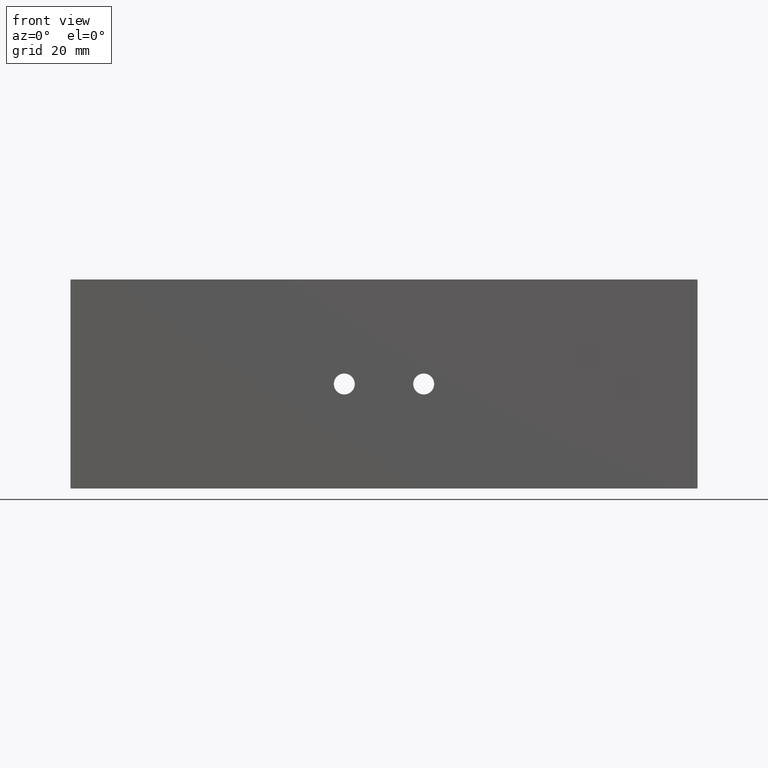
[diagram: clean part render]
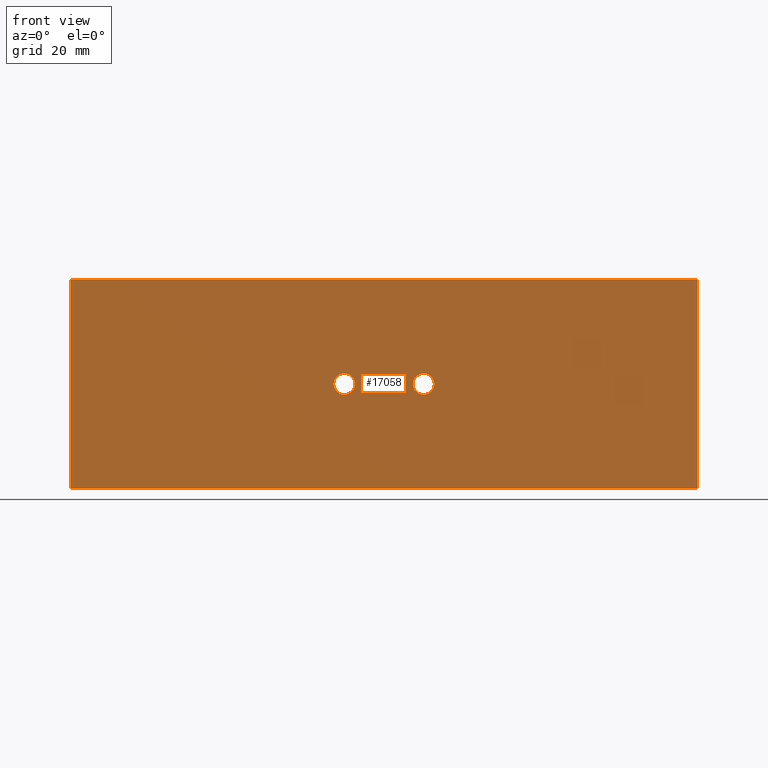
[diagram: same view with one face highlighted and labeled with its STEP entity id]
A machine part, front view. The second image highlights one B-rep face of the part: STEP entity #17058.
In plain terms, the highlighted planar face has unit normal (0, 1, 0).
Its self-contained STEP definition (entity closure, byte-faithful):
#3954 = DIRECTION ( 'NONE',  ( 0.0000000000000000000, -0.0000000000000000000, 1.000000000000000000 ) ) ;
#3988 = CARTESIAN_POINT ( 'NONE',  ( -2.999999999999999100, -0.4400000000000000000, 1.000000000000000000 ) ) ;
#4221 = DIRECTION ( 'NONE',  ( 0.0000000000000000000, 1.000000000000000000, 0.0000000000000000000 ) ) ;
#9739 = ORIENTED_EDGE ( 'NONE', *, *, #24788, .T. ) ;
#9889 = ORIENTED_EDGE ( 'NONE', *, *, #24834, .F. ) ;
#9895 = ORIENTED_EDGE ( 'NONE', *, *, #24843, .T. ) ;
#9897 = ORIENTED_EDGE ( 'NONE', *, *, #24790, .F. ) ;
#9902 = ORIENTED_EDGE ( 'NONE', *, *, #26831, .T. ) ;
#9906 = ORIENTED_EDGE ( 'NONE', *, *, #24789, .T. ) ;
#9912 = ORIENTED_EDGE ( 'NONE', *, *, #24787, .T. ) ;
#9919 = ORIENTED_EDGE ( 'NONE', *, *, #24827, .T. ) ;
#10480 = EDGE_LOOP ( 'NONE', ( #9906, #9889, #9897, #9895 ) ) ;
#10950 = EDGE_LOOP ( 'NONE', ( #9912, #9902 ) ) ;
#10958 = EDGE_LOOP ( 'NONE', ( #9739, #9919 ) ) ;
#14627 = AXIS2_PLACEMENT_3D ( 'NONE', #18476, #18477, #18478 ) ;
#15230 = CIRCLE ( 'NONE', #14627, 0.1004999999999999900 ) ;
#17058 = ADVANCED_FACE ( 'NONE', ( #28360, #28368, #28362 ), #33721, .F. ) ;
#18476 = CARTESIAN_POINT ( 'NONE',  ( -0.3799999999999992300, -0.4399999999999998900, 0.0000000000000000000 ) ) ;
#18477 = DIRECTION ( 'NONE',  ( -0.0000000000000000000, 1.000000000000000000, -0.0000000000000000000 ) ) ;
#18478 = DIRECTION ( 'NONE',  ( 0.0000000000000000000, 0.0000000000000000000, 1.000000000000000000 ) ) ;
#19414 = CARTESIAN_POINT ( 'NONE',  ( -2.999999999999999100, -0.4400000000000000000, 1.000000000000000000 ) ) ;
#20289 = CARTESIAN_POINT ( 'NONE',  ( -2.999999999999999100, -0.4400000000000000000, -1.000000000000000000 ) ) ;
#20290 = CARTESIAN_POINT ( 'NONE',  ( 3.000000000000001300, -0.4400000000000000000, -1.000000000000000000 ) ) ;
#20293 = CARTESIAN_POINT ( 'NONE',  ( 0.3800000000000008400, -0.4399999999999998900, 0.1004999999999999900 ) ) ;
#20295 = CARTESIAN_POINT ( 'NONE',  ( -0.3799999999999992300, -0.4399999999999998900, 0.1004999999999999900 ) ) ;
#20356 = CARTESIAN_POINT ( 'NONE',  ( 3.000000000000001300, -0.4400000000000000000, 1.000000000000000000 ) ) ;
#20370 = CARTESIAN_POINT ( 'NONE',  ( -0.3799999999999992300, -0.4399999999999998900, -0.1004999999999999900 ) ) ;
#20385 = CARTESIAN_POINT ( 'NONE',  ( 0.3800000000000008400, -0.4399999999999998900, -0.1004999999999999900 ) ) ;
#24787 = EDGE_CURVE ( 'NONE', #44084, #44159, #35781, .T. ) ;
#24788 = EDGE_CURVE ( 'NONE', #44082, #44174, #35778, .T. ) ;
#24789 = EDGE_CURVE ( 'NONE', #44078, #44079, #35783, .T. ) ;
#24790 = EDGE_CURVE ( 'NONE', #35992, #44145, #35784, .T. ) ;
#24827 = EDGE_CURVE ( 'NONE', #44174, #44082, #46430, .T. ) ;
#24834 = EDGE_CURVE ( 'NONE', #44145, #44079, #46440, .T. ) ;
#24843 = EDGE_CURVE ( 'NONE', #35992, #44078, #46454, .T. ) ;
#26831 = EDGE_CURVE ( 'NONE', #44159, #44084, #15230, .T. ) ;
#28360 = FACE_BOUND ( 'NONE', #10950, .T. ) ;
#28362 = FACE_OUTER_BOUND ( 'NONE', #10480, .T. ) ;
#28368 = FACE_BOUND ( 'NONE', #10958, .T. ) ;
#33721 = PLANE ( 'NONE',  #42513 ) ;
#35778 = CIRCLE ( 'NONE', #44400, 0.1004999999999999900 ) ;
#35781 = CIRCLE ( 'NONE', #44399, 0.1004999999999999900 ) ;
#35783 = LINE ( 'NONE', #45292, #35786 ) ;
#35784 = LINE ( 'NONE', #45291, #35788 ) ;
#35786 = VECTOR ( 'NONE', #45284, 39.37007874015748100 ) ;
#35788 = VECTOR ( 'NONE', #45296, 39.37007874015748100 ) ;
#35992 = VERTEX_POINT ( 'NONE', #19414 ) ;
#42513 = AXIS2_PLACEMENT_3D ( 'NONE', #3988, #4221, #3954 ) ;
#44078 = VERTEX_POINT ( 'NONE', #20289 ) ;
#44079 = VERTEX_POINT ( 'NONE', #20290 ) ;
#44082 = VERTEX_POINT ( 'NONE', #20293 ) ;
#44084 = VERTEX_POINT ( 'NONE', #20295 ) ;
#44145 = VERTEX_POINT ( 'NONE', #20356 ) ;
#44159 = VERTEX_POINT ( 'NONE', #20370 ) ;
#44174 = VERTEX_POINT ( 'NONE', #20385 ) ;
#44399 = AXIS2_PLACEMENT_3D ( 'NONE', #45288, #45289, #45290 ) ;
#44400 = AXIS2_PLACEMENT_3D ( 'NONE', #45293, #45294, #45295 ) ;
#44414 = AXIS2_PLACEMENT_3D ( 'NONE', #45431, #45432, #45433 ) ;
#45284 = DIRECTION ( 'NONE',  ( 1.000000000000000000, 0.0000000000000000000, 0.0000000000000000000 ) ) ;
#45288 = CARTESIAN_POINT ( 'NONE',  ( -0.3799999999999992300, -0.4399999999999998900, 0.0000000000000000000 ) ) ;
#45289 = DIRECTION ( 'NONE',  ( -0.0000000000000000000, 1.000000000000000000, -0.0000000000000000000 ) ) ;
#45290 = DIRECTION ( 'NONE',  ( 0.0000000000000000000, 0.0000000000000000000, 1.000000000000000000 ) ) ;
#45291 = CARTESIAN_POINT ( 'NONE',  ( -2.999999999999999100, -0.4400000000000000000, 1.000000000000000000 ) ) ;
#45292 = CARTESIAN_POINT ( 'NONE',  ( -2.999999999999999100, -0.4400000000000000000, -1.000000000000000000 ) ) ;
#45293 = CARTESIAN_POINT ( 'NONE',  ( 0.3800000000000008400, -0.4399999999999998900, 0.0000000000000000000 ) ) ;
#45294 = DIRECTION ( 'NONE',  ( -0.0000000000000000000, 1.000000000000000000, -0.0000000000000000000 ) ) ;
#45295 = DIRECTION ( 'NONE',  ( 0.0000000000000000000, 0.0000000000000000000, 1.000000000000000000 ) ) ;
#45296 = DIRECTION ( 'NONE',  ( 1.000000000000000000, 0.0000000000000000000, 0.0000000000000000000 ) ) ;
#45431 = CARTESIAN_POINT ( 'NONE',  ( 0.3800000000000008400, -0.4399999999999998900, 0.0000000000000000000 ) ) ;
#45432 = DIRECTION ( 'NONE',  ( -0.0000000000000000000, 1.000000000000000000, -0.0000000000000000000 ) ) ;
#45433 = DIRECTION ( 'NONE',  ( 0.0000000000000000000, 0.0000000000000000000, 1.000000000000000000 ) ) ;
#45444 = CARTESIAN_POINT ( 'NONE',  ( 3.000000000000001300, -0.4400000000000000000, 1.000000000000000000 ) ) ;
#45445 = DIRECTION ( 'NONE',  ( -0.0000000000000000000, -0.0000000000000000000, -1.000000000000000000 ) ) ;
#45468 = CARTESIAN_POINT ( 'NONE',  ( -2.999999999999999100, -0.4400000000000000000, 1.000000000000000000 ) ) ;
#45469 = DIRECTION ( 'NONE',  ( -0.0000000000000000000, -0.0000000000000000000, -1.000000000000000000 ) ) ;
#46430 = CIRCLE ( 'NONE', #44414, 0.1004999999999999900 ) ;
#46440 = LINE ( 'NONE', #45444, #46443 ) ;
#46443 = VECTOR ( 'NONE', #45445, 39.37007874015748100 ) ;
#46454 = LINE ( 'NONE', #45468, #46457 ) ;
#46457 = VECTOR ( 'NONE', #45469, 39.37007874015748100 ) ;